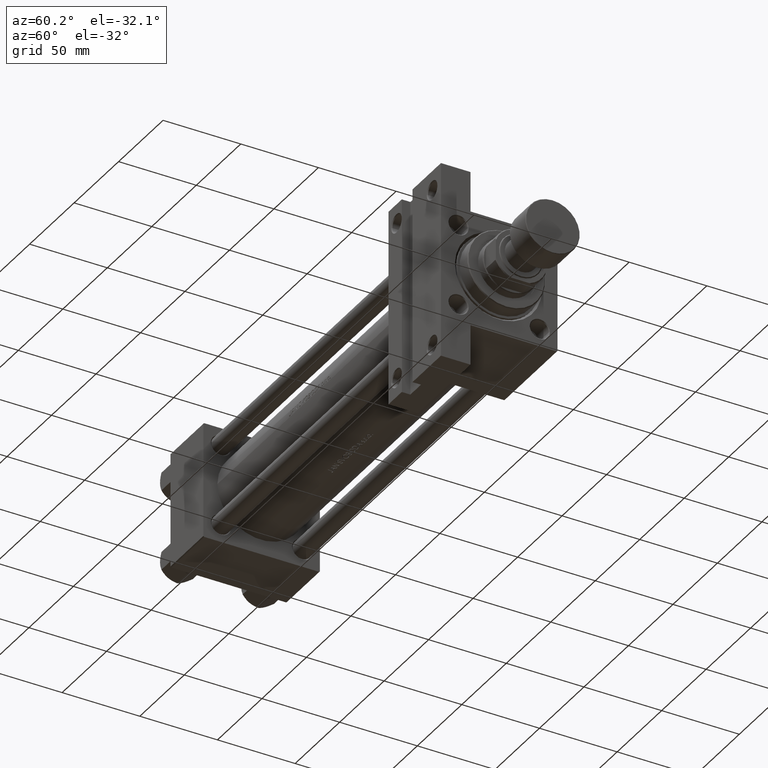
[diagram: clean part render]
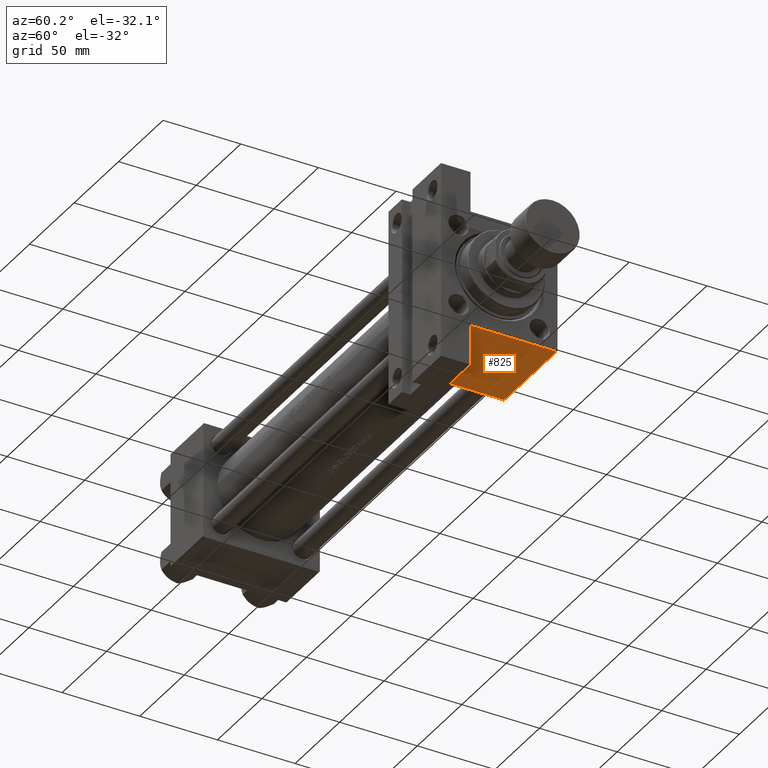
[diagram: same view with one face highlighted and labeled with its STEP entity id]
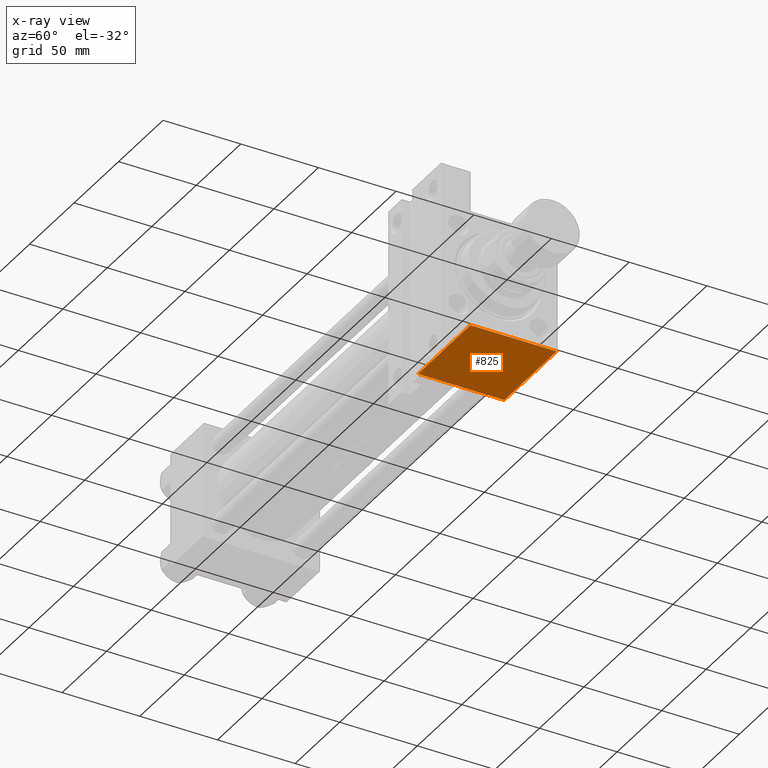
[diagram: x-ray of the same camera — body ghosted, the highlighted face saturated]
A machine part, auxiliary view. The second image highlights one B-rep face of the part: STEP entity #825.
The next image is the same camera in x-ray: the body ghosted, the highlighted face saturated — about 14% of this face is hidden behind the body in this view.
In plain terms, the highlighted planar face has unit normal (0, 0, -1).
Its self-contained STEP definition (entity closure, byte-faithful):
#825 = ADVANCED_FACE ( 'NONE', ( #28301 ), #35437, .T. ) ;
#1149 = ORIENTED_EDGE ( 'NONE', *, *, #36970, .T. ) ;
#2198 = CARTESIAN_POINT ( 'NONE',  ( 304.0000000000000000, 37.50000000000000000, 37.49999999999999289 ) ) ;
#7736 = LINE ( 'NONE', #24179, #10522 ) ;
#9747 = AXIS2_PLACEMENT_3D ( 'NONE', #42782, #12603, #43515 ) ;
#10315 = LINE ( 'NONE', #2198, #35960 ) ;
#10522 = VECTOR ( 'NONE', #23203, 1000.000000000000000 ) ;
#12603 = DIRECTION ( 'NONE',  ( -0.000000000000000000, 1.000000000000000000, 0.000000000000000000 ) ) ;
#13091 = VECTOR ( 'NONE', #18812, 1000.000000000000000 ) ;
#14632 = VERTEX_POINT ( 'NONE', #25072 ) ;
#17291 = LINE ( 'NONE', #40850, #26428 ) ;
#17683 = DIRECTION ( 'NONE',  ( 0.000000000000000000, 0.000000000000000000, -1.000000000000000000 ) ) ;
#18812 = DIRECTION ( 'NONE',  ( -1.000000000000000000, 8.232585987686542394E-16, -0.000000000000000000 ) ) ;
#20396 = CARTESIAN_POINT ( 'NONE',  ( 304.0000000000000000, 37.50000000000000000, 36.99999999999993605 ) ) ;
#22394 = CARTESIAN_POINT ( 'NONE',  ( 245.0000000000000000, 37.50000000000000000, -18.50000000000000355 ) ) ;
#23203 = DIRECTION ( 'NONE',  ( 1.000000000000000000, 0.000000000000000000, 0.000000000000000000 ) ) ;
#23939 = EDGE_CURVE ( 'NONE', #41438, #14632, #10315, .T. ) ;
#24179 = CARTESIAN_POINT ( 'NONE',  ( 304.0000000000000000, 37.50000000000000000, 36.99999999999993605 ) ) ;
#25072 = CARTESIAN_POINT ( 'NONE',  ( 304.0000000000000000, 37.49999999999995026, -18.50000000000000000 ) ) ;
#26149 = LINE ( 'NONE', #45410, #13091 ) ;
#26428 = VECTOR ( 'NONE', #28942, 1000.000000000000000 ) ;
#27362 = VERTEX_POINT ( 'NONE', #22394 ) ;
#28301 = FACE_OUTER_BOUND ( 'NONE', #33386, .T. ) ;
#28942 = DIRECTION ( 'NONE',  ( 0.000000000000000000, 0.000000000000000000, -1.000000000000000000 ) ) ;
#31000 = CARTESIAN_POINT ( 'NONE',  ( 245.0000000000000000, 37.50000000000000000, 36.99999999999993605 ) ) ;
#33386 = EDGE_LOOP ( 'NONE', ( #45301, #36696, #36764, #1149 ) ) ;
#33500 = EDGE_CURVE ( 'NONE', #44401, #41438, #7736, .T. ) ;
#35437 = PLANE ( 'NONE',  #9747 ) ;
#35960 = VECTOR ( 'NONE', #17683, 1000.000000000000000 ) ;
#36696 = ORIENTED_EDGE ( 'NONE', *, *, #33500, .T. ) ;
#36764 = ORIENTED_EDGE ( 'NONE', *, *, #23939, .T. ) ;
#36970 = EDGE_CURVE ( 'NONE', #14632, #27362, #26149, .T. ) ;
#40850 = CARTESIAN_POINT ( 'NONE',  ( 245.0000000000000000, 37.50000000000000000, 37.49999999999999289 ) ) ;
#41438 = VERTEX_POINT ( 'NONE', #20396 ) ;
#42782 = CARTESIAN_POINT ( 'NONE',  ( 304.0000000000000000, 37.50000000000000000, 37.49999999999999289 ) ) ;
#43515 = DIRECTION ( 'NONE',  ( 0.000000000000000000, -0.000000000000000000, 1.000000000000000000 ) ) ;
#44401 = VERTEX_POINT ( 'NONE', #31000 ) ;
#44623 = EDGE_CURVE ( 'NONE', #44401, #27362, #17291, .T. ) ;
#45301 = ORIENTED_EDGE ( 'NONE', *, *, #44623, .F. ) ;
#45410 = CARTESIAN_POINT ( 'NONE',  ( 245.0000000000000000, 37.50000000000000000, -18.50000000000000000 ) ) ;